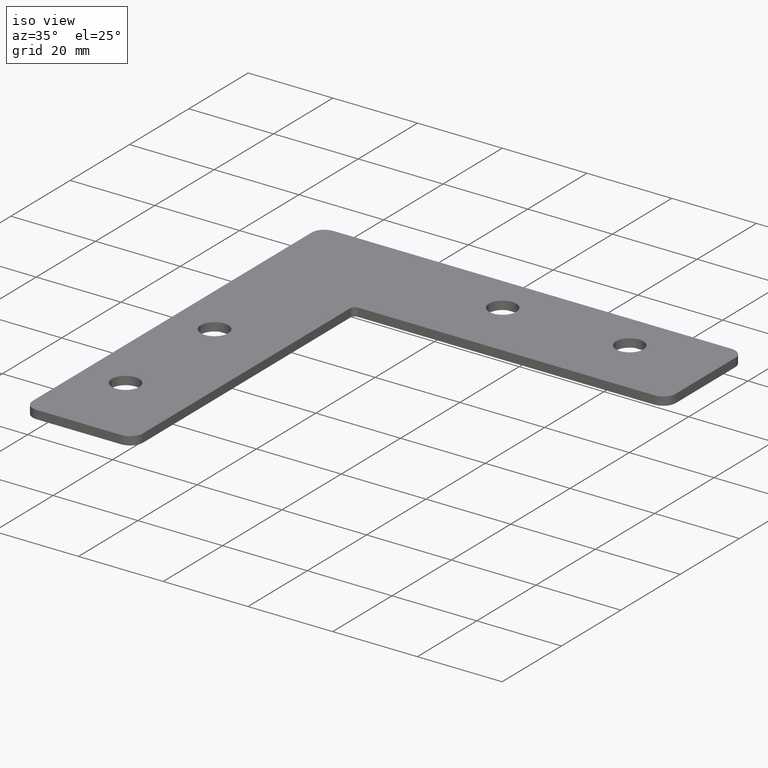
[diagram: clean part render]
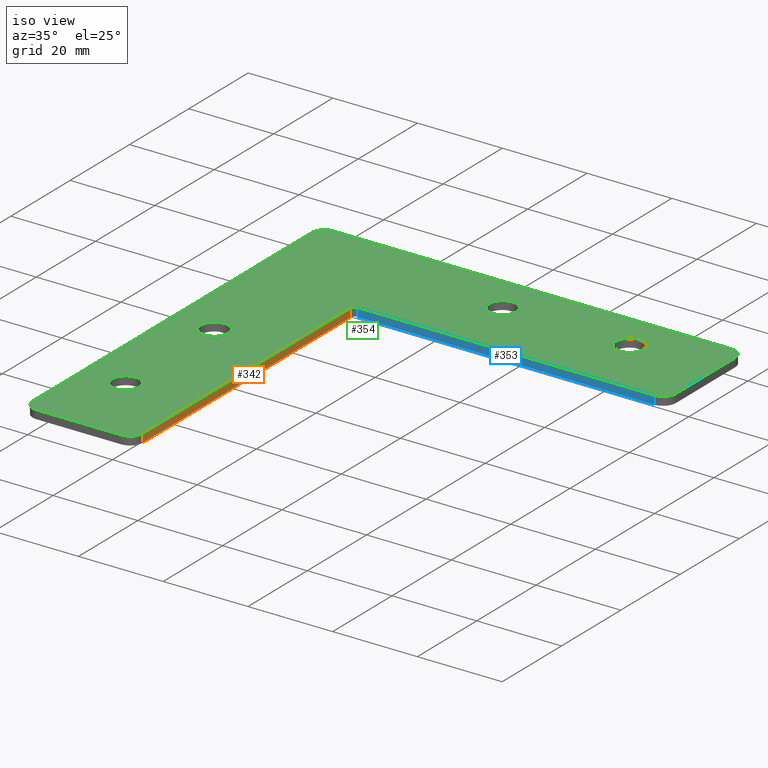
[diagram: same view with three faces highlighted in distinct colors, each labeled with its STEP entity id]
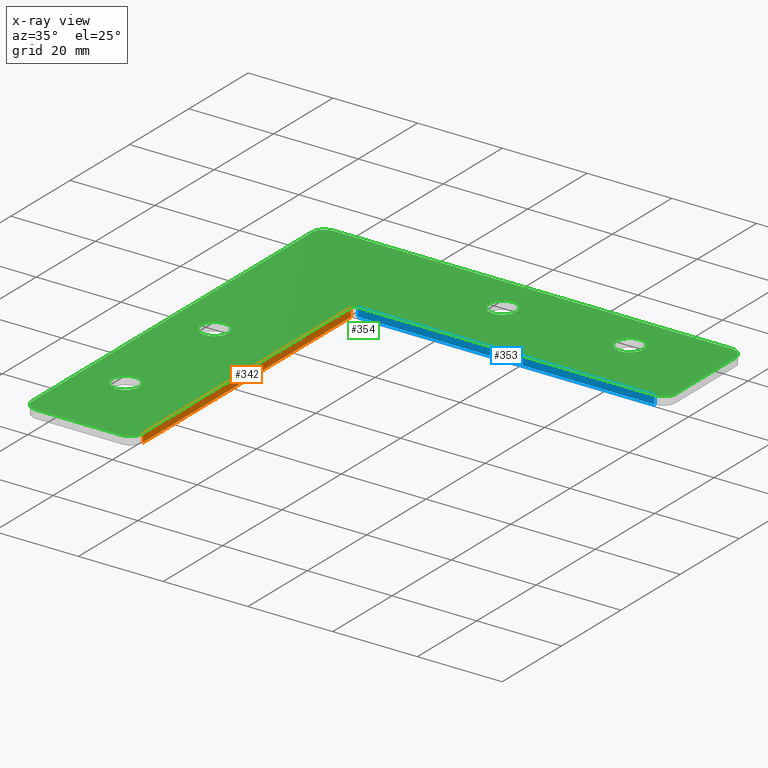
[diagram: x-ray of the same camera — body ghosted, the three highlighted faces saturated]
A machine part, iso view with three faces highlighted in distinct colors.
The next image is the same camera in x-ray (body ghosted, the three faces saturated) — at least one of them is partly hidden behind the body in this view.
Their STEP definitions:

[orange] entity #342 — the highlighted planar face has unit normal (1, 0, 0).
#23=PLANE('',#393);
#36=FACE_OUTER_BOUND('',#54,.T.);
#54=EDGE_LOOP('',(#251,#252,#253,#254));
#79=LINE('',#552,#107);
#81=LINE('',#558,#109);
#82=LINE('',#560,#110);
#83=LINE('',#561,#111);
#107=VECTOR('',#450,10.);
#109=VECTOR('',#456,10.);
#110=VECTOR('',#457,10.);
#111=VECTOR('',#458,10.);
#160=VERTEX_POINT('',#549);
#161=VERTEX_POINT('',#551);
#163=VERTEX_POINT('',#557);
#164=VERTEX_POINT('',#559);
#196=EDGE_CURVE('',#160,#161,#79,.T.);
#199=EDGE_CURVE('',#163,#160,#81,.T.);
#200=EDGE_CURVE('',#164,#163,#82,.T.);
#201=EDGE_CURVE('',#161,#164,#83,.T.);
#251=ORIENTED_EDGE('',*,*,#196,.F.);
#252=ORIENTED_EDGE('',*,*,#199,.F.);
#253=ORIENTED_EDGE('',*,*,#200,.F.);
#254=ORIENTED_EDGE('',*,*,#201,.F.);
#342=ADVANCED_FACE('',(#36),#23,.T.);
#393=AXIS2_PLACEMENT_3D('',#556,#454,#455);
#450=DIRECTION('',(0.,0.,-1.));
#454=DIRECTION('center_axis',(1.,0.,0.));
#455=DIRECTION('ref_axis',(0.,1.,0.));
#456=DIRECTION('',(0.,1.,0.));
#457=DIRECTION('',(0.,0.,1.));
#458=DIRECTION('',(0.,-1.,0.));
#549=CARTESIAN_POINT('',(-37.,36.,1.));
#551=CARTESIAN_POINT('',(-37.,36.,-1.));
#552=CARTESIAN_POINT('',(-37.,36.,0.));
#556=CARTESIAN_POINT('Origin',(-37.,-37.,0.));
#557=CARTESIAN_POINT('',(-37.,-34.,1.));
#558=CARTESIAN_POINT('',(-37.,37.,1.));
#559=CARTESIAN_POINT('',(-37.,-34.,-1.));
#560=CARTESIAN_POINT('',(-37.,-34.,0.));
#561=CARTESIAN_POINT('',(-37.,37.,-1.));

[blue] entity #353 — the highlighted planar face has unit normal (0, -1, 0).
#29=PLANE('',#414);
#47=FACE_OUTER_BOUND('',#69,.T.);
#69=EDGE_LOOP('',(#307,#308,#309,#310));
#80=LINE('',#555,#108);
#92=LINE('',#590,#120);
#97=LINE('',#607,#125);
#102=LINE('',#619,#130);
#108=VECTOR('',#453,10.);
#120=VECTOR('',#483,10.);
#125=VECTOR('',#504,10.);
#130=VECTOR('',#519,10.);
#159=VERTEX_POINT('',#548);
#162=VERTEX_POINT('',#553);
#176=VERTEX_POINT('',#588);
#180=VERTEX_POINT('',#605);
#198=EDGE_CURVE('',#162,#159,#80,.T.);
#215=EDGE_CURVE('',#176,#162,#92,.T.);
#224=EDGE_CURVE('',#180,#176,#97,.T.);
#230=EDGE_CURVE('',#159,#180,#102,.T.);
#307=ORIENTED_EDGE('',*,*,#198,.F.);
#308=ORIENTED_EDGE('',*,*,#215,.F.);
#309=ORIENTED_EDGE('',*,*,#224,.F.);
#310=ORIENTED_EDGE('',*,*,#230,.F.);
#353=ADVANCED_FACE('',(#47),#29,.T.);
#414=AXIS2_PLACEMENT_3D('',#618,#517,#518);
#453=DIRECTION('',(0.,0.,1.));
#483=DIRECTION('',(-1.,0.,0.));
#504=DIRECTION('',(0.,0.,-1.));
#517=DIRECTION('center_axis',(0.,-1.,0.));
#518=DIRECTION('ref_axis',(1.,0.,0.));
#519=DIRECTION('',(1.,0.,0.));
#548=CARTESIAN_POINT('',(-36.,37.,1.));
#553=CARTESIAN_POINT('',(-36.,37.,-1.));
#555=CARTESIAN_POINT('',(-36.,37.,0.));
#588=CARTESIAN_POINT('',(34.,37.,-1.));
#590=CARTESIAN_POINT('',(37.,37.,-1.));
#605=CARTESIAN_POINT('',(34.,37.,1.));
#607=CARTESIAN_POINT('',(34.,37.,0.));
#618=CARTESIAN_POINT('Origin',(-37.,37.,0.));
#619=CARTESIAN_POINT('',(37.,37.,1.));

[green] entity #354 — the highlighted planar face has unit normal (0, 0, 1).
#19=FACE_BOUND('',#71,.T.);
#20=FACE_BOUND('',#72,.T.);
#21=FACE_BOUND('',#73,.T.);
#22=FACE_BOUND('',#74,.T.);
#30=PLANE('',#415);
#48=FACE_OUTER_BOUND('',#70,.T.);
#70=EDGE_LOOP('',(#311,#312,#313,#314,#315,#316,#317,#318,#319,#320,#321,
#322));
#71=EDGE_LOOP('',(#323));
#72=EDGE_LOOP('',(#324));
#73=EDGE_LOOP('',(#325));
#74=EDGE_LOOP('',(#326));
#81=LINE('',#558,#109);
#88=LINE('',#576,#116);
#95=LINE('',#601,#123);
#99=LINE('',#611,#127);
#101=LINE('',#617,#129);
#102=LINE('',#619,#130);
#109=VECTOR('',#456,10.);
#116=VECTOR('',#471,10.);
#123=VECTOR('',#498,10.);
#127=VECTOR('',#508,10.);
#129=VECTOR('',#516,10.);
#130=VECTOR('',#519,10.);
#131=CIRCLE('',#379,3.25);
#133=CIRCLE('',#382,3.25);
#135=CIRCLE('',#385,3.25);
#137=CIRCLE('',#388,3.25);
#139=CIRCLE('',#391,1.);
#142=CIRCLE('',#396,3.);
#147=CIRCLE('',#404,3.);
#148=CIRCLE('',#406,3.);
#149=CIRCLE('',#409,3.);
#150=CIRCLE('',#412,3.);
#151=VERTEX_POINT('',#524);
#153=VERTEX_POINT('',#530);
#155=VERTEX_POINT('',#536);
#157=VERTEX_POINT('',#542);
#159=VERTEX_POINT('',#548);
#160=VERTEX_POINT('',#549);
#163=VERTEX_POINT('',#557);
#167=VERTEX_POINT('',#566);
#168=VERTEX_POINT('',#568);
#170=VERTEX_POINT('',#574);
#177=VERTEX_POINT('',#595);
#178=VERTEX_POINT('',#596);
#179=VERTEX_POINT('',#603);
#180=VERTEX_POINT('',#605);
#181=VERTEX_POINT('',#609);
#182=VERTEX_POINT('',#613);
#183=EDGE_CURVE('',#151,#151,#131,.T.);
#186=EDGE_CURVE('',#153,#153,#133,.T.);
#189=EDGE_CURVE('',#155,#155,#135,.T.);
#192=EDGE_CURVE('',#157,#157,#137,.T.);
#195=EDGE_CURVE('',#159,#160,#139,.T.);
#199=EDGE_CURVE('',#163,#160,#81,.T.);
#204=EDGE_CURVE('',#167,#168,#142,.T.);
#208=EDGE_CURVE('',#167,#170,#88,.T.);
#217=EDGE_CURVE('',#163,#170,#147,.T.);
#218=EDGE_CURVE('',#177,#178,#148,.T.);
#221=EDGE_CURVE('',#177,#168,#95,.T.);
#223=EDGE_CURVE('',#179,#180,#149,.T.);
#226=EDGE_CURVE('',#179,#181,#99,.T.);
#228=EDGE_CURVE('',#182,#181,#150,.T.);
#229=EDGE_CURVE('',#182,#178,#101,.T.);
#230=EDGE_CURVE('',#159,#180,#102,.T.);
#311=ORIENTED_EDGE('',*,*,#204,.F.);
#312=ORIENTED_EDGE('',*,*,#208,.T.);
#313=ORIENTED_EDGE('',*,*,#217,.F.);
#314=ORIENTED_EDGE('',*,*,#199,.T.);
#315=ORIENTED_EDGE('',*,*,#195,.F.);
#316=ORIENTED_EDGE('',*,*,#230,.T.);
#317=ORIENTED_EDGE('',*,*,#223,.F.);
#318=ORIENTED_EDGE('',*,*,#226,.T.);
#319=ORIENTED_EDGE('',*,*,#228,.F.);
#320=ORIENTED_EDGE('',*,*,#229,.T.);
#321=ORIENTED_EDGE('',*,*,#218,.F.);
#322=ORIENTED_EDGE('',*,*,#221,.T.);
#323=ORIENTED_EDGE('',*,*,#183,.T.);
#324=ORIENTED_EDGE('',*,*,#186,.T.);
#325=ORIENTED_EDGE('',*,*,#189,.T.);
#326=ORIENTED_EDGE('',*,*,#192,.T.);
#354=ADVANCED_FACE('',(#48,#19,#20,#21,#22),#30,.T.);
#379=AXIS2_PLACEMENT_3D('',#525,#420,#421);
#382=AXIS2_PLACEMENT_3D('',#531,#427,#428);
#385=AXIS2_PLACEMENT_3D('',#537,#434,#435);
#388=AXIS2_PLACEMENT_3D('',#543,#441,#442);
#391=AXIS2_PLACEMENT_3D('',#550,#448,#449);
#396=AXIS2_PLACEMENT_3D('',#569,#464,#465);
#404=AXIS2_PLACEMENT_3D('',#593,#488,#489);
#406=AXIS2_PLACEMENT_3D('',#597,#492,#493);
#409=AXIS2_PLACEMENT_3D('',#606,#502,#503);
#412=AXIS2_PLACEMENT_3D('',#615,#512,#513);
#415=AXIS2_PLACEMENT_3D('',#620,#520,#521);
#420=DIRECTION('center_axis',(0.,0.,-1.));
#421=DIRECTION('ref_axis',(1.,0.,0.));
#427=DIRECTION('center_axis',(0.,0.,-1.));
#428=DIRECTION('ref_axis',(1.,0.,0.));
#434=DIRECTION('center_axis',(0.,0.,-1.));
#435=DIRECTION('ref_axis',(1.,0.,0.));
#441=DIRECTION('center_axis',(0.,0.,-1.));
#442=DIRECTION('ref_axis',(1.,0.,0.));
#448=DIRECTION('center_axis',(0.,0.,1.));
#449=DIRECTION('ref_axis',(-0.707106781186551,0.707106781186544,0.));
#456=DIRECTION('',(0.,1.,0.));
#464=DIRECTION('center_axis',(0.,0.,-1.));
#465=DIRECTION('ref_axis',(-0.707106781186547,-0.707106781186548,0.));
#471=DIRECTION('',(1.,0.,0.));
#488=DIRECTION('center_axis',(0.,0.,-1.));
#489=DIRECTION('ref_axis',(0.707106781186547,-0.707106781186548,0.));
#492=DIRECTION('center_axis',(0.,0.,-1.));
#493=DIRECTION('ref_axis',(-0.707106781186548,0.707106781186548,0.));
#498=DIRECTION('',(-5.32907051820075E-16,-1.,0.));
#502=DIRECTION('center_axis',(0.,0.,-1.));
#503=DIRECTION('ref_axis',(0.707106781186547,-0.707106781186547,0.));
#508=DIRECTION('',(-3.41607084500048E-16,1.,0.));
#512=DIRECTION('center_axis',(0.,0.,-1.));
#513=DIRECTION('ref_axis',(0.707106781186546,0.707106781186549,0.));
#516=DIRECTION('',(-1.,0.,0.));
#519=DIRECTION('',(1.,0.,0.));
#520=DIRECTION('center_axis',(0.,0.,1.));
#521=DIRECTION('ref_axis',(1.,0.,0.));
#524=CARTESIAN_POINT('',(-56.25,-17.,0.999999999999996));
#525=CARTESIAN_POINT('Origin',(-53.,-17.,0.999999999999996));
#530=CARTESIAN_POINT('',(13.75,53.,0.999999999999996));
#531=CARTESIAN_POINT('Origin',(17.,53.,0.999999999999996));
#536=CARTESIAN_POINT('',(-16.25,53.,0.999999999999996));
#537=CARTESIAN_POINT('Origin',(-13.,53.,0.999999999999996));
#542=CARTESIAN_POINT('',(-56.25,13.,0.999999999999996));
#543=CARTESIAN_POINT('Origin',(-53.,13.,0.999999999999996));
#548=CARTESIAN_POINT('',(-36.,37.,1.));
#549=CARTESIAN_POINT('',(-37.,36.,1.));
#550=CARTESIAN_POINT('Origin',(-36.,36.,1.));
#557=CARTESIAN_POINT('',(-37.,-34.,1.));
#558=CARTESIAN_POINT('',(-37.,37.,1.));
#566=CARTESIAN_POINT('',(-60.,-37.,1.));
#568=CARTESIAN_POINT('',(-63.,-34.,1.));
#569=CARTESIAN_POINT('Origin',(-60.,-34.,1.));
#574=CARTESIAN_POINT('',(-40.,-37.,1.));
#576=CARTESIAN_POINT('',(-37.,-37.,1.));
#593=CARTESIAN_POINT('Origin',(-40.,-34.,1.));
#595=CARTESIAN_POINT('',(-63.,60.,1.));
#596=CARTESIAN_POINT('',(-60.,63.,1.));
#597=CARTESIAN_POINT('Origin',(-60.,60.,1.));
#601=CARTESIAN_POINT('',(-63.,-37.,1.));
#603=CARTESIAN_POINT('',(37.,40.,1.));
#605=CARTESIAN_POINT('',(34.,37.,1.));
#606=CARTESIAN_POINT('Origin',(34.,40.,1.));
#609=CARTESIAN_POINT('',(37.,60.,1.));
#611=CARTESIAN_POINT('',(37.,63.,1.));
#613=CARTESIAN_POINT('',(34.,63.,1.));
#615=CARTESIAN_POINT('Origin',(34.,60.,1.));
#617=CARTESIAN_POINT('',(-63.,63.,1.));
#619=CARTESIAN_POINT('',(37.,37.,1.));
#620=CARTESIAN_POINT('Origin',(-26.69,26.69,1.));